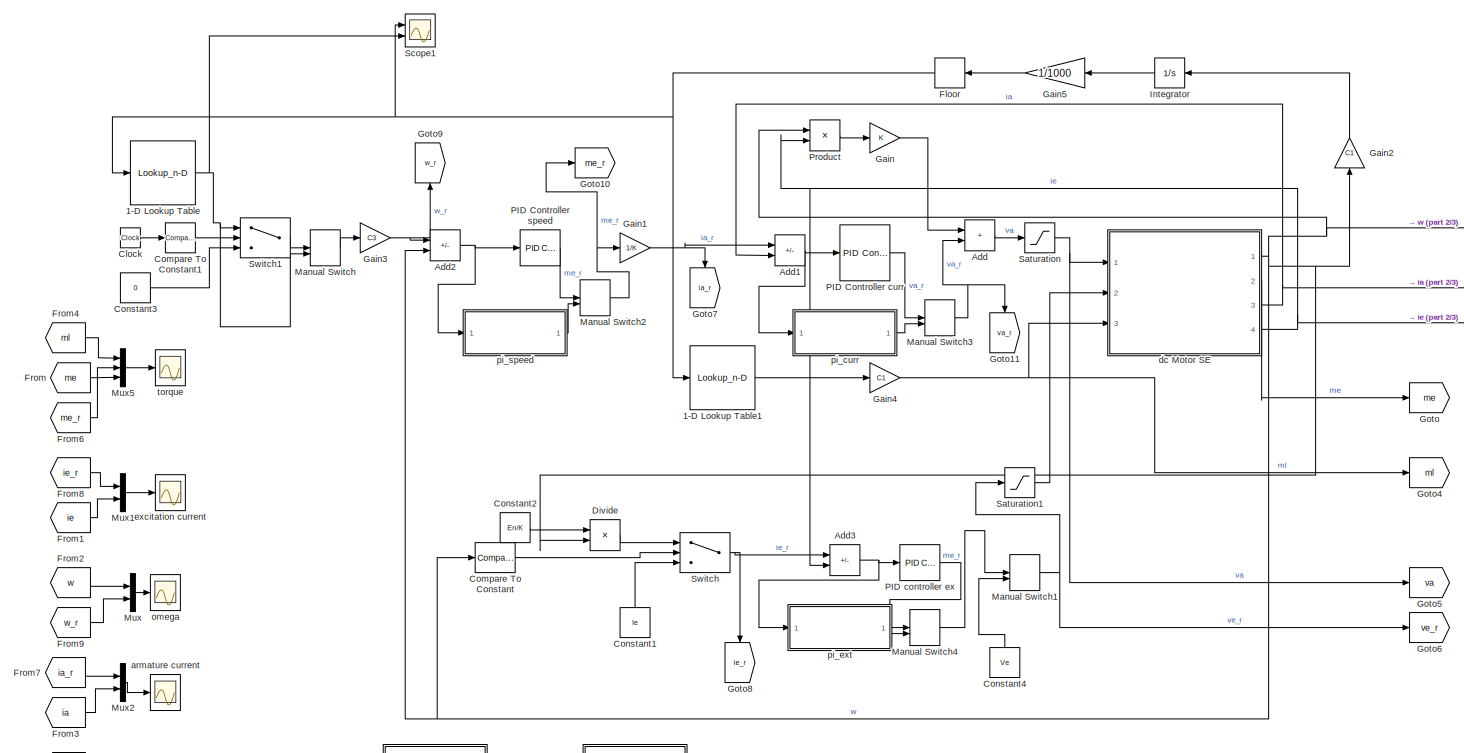
[diagram: root canvas - part 1/3, most of the canvas]
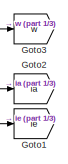
[diagram: root canvas - part 2/3, top right region]
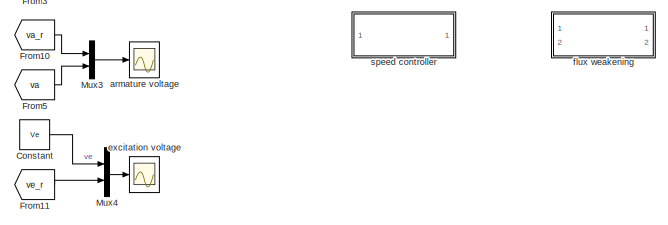
[diagram: root canvas - part 3/3, bottom left region]
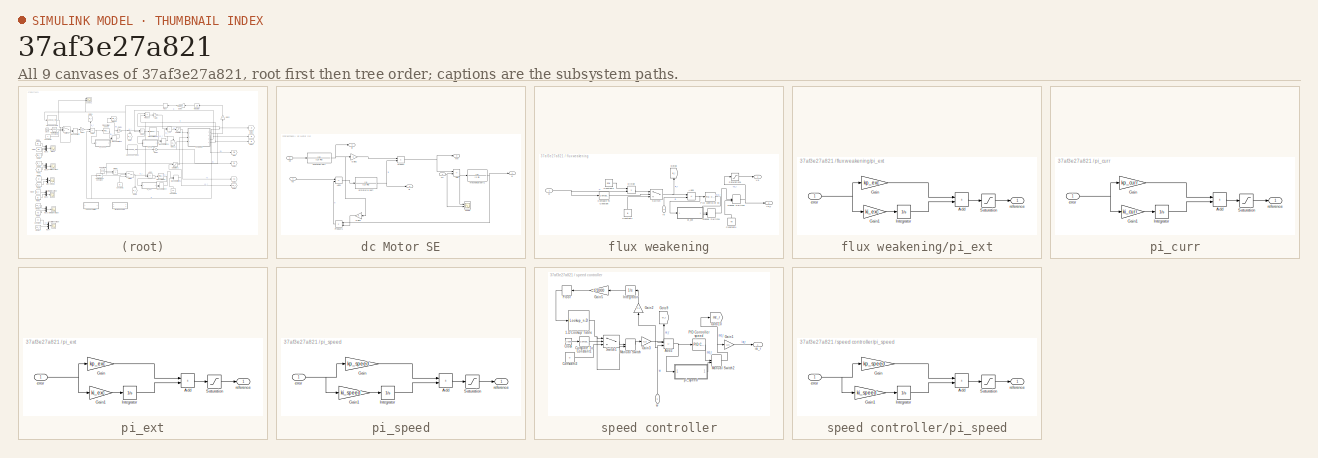
[diagram: thumbnail index - all 9 canvases of the model, root first then tree order]
MODEL slx_37af3e27a821
KIND model
CONFIG AbsTol = auto
CONFIG EnableMultiTasking = off
CONFIG FixedStep = auto
CONFIG MaxStep = auto
CONFIG MinStep = auto
CONFIG RelTol = 1e-3
CONFIG SampleTimeConstraint = Unconstrained
CONFIG SolverName = VariableStepAuto
CONFIG StartTime = 0.0
CONFIG StopTime = 800
BLOCK [Lookup_n-D] 1-D Lookup Table
  BreakpointsForDimension1 = [0 1 3 4 6 8 9 10]
  InputPortMap = u0
  InternalRulePriority = Speed
  InterpMethod = Flat
  NumberOfTableDimensions = 1
  Ports = [1, 1]
  RndMeth = Simplest
  Table = [35 60 60 75 60 60 35 0]
BLOCK [Lookup_n-D] 1-D Lookup Table1
  BreakpointsForDimension1 = [0 1 3 4 6 8 9 10]
  InputPortMap = u0
  InternalRulePriority = Speed
  InterpMethod = Flat
  NumberOfTableDimensions = 1
  Ports = [1, 1]
  RndMeth = Simplest
  Table = [0 0 26000*9.81*sin(atan(5/100)) 0 0 26000*9.81*sin(atan(-5/100)) 0 0]
BLOCK [Sum] Add
  IconShape = rectangular
  Ports = [2, 1]
BLOCK [Sum] Add1
  IconShape = rectangular
  Inputs = +-
  Ports = [2, 1]
BLOCK [Sum] Add2
  IconShape = rectangular
  Inputs = +-
  Ports = [2, 1]
BLOCK [Sum] Add3
  IconShape = rectangular
  Inputs = +-
  Ports = [2, 1]
BLOCK [Clock] Clock
BLOCK [Reference] Compare To Constant  REF=simulink/Logic and Bit
Operations/Compare
To Constant
  Ports = [1, 1]
  SourceBlock = simulink/Logic and Bit\nOperations/Compare\nTo Constant
  SourceProductBaseCode = SL
  SourceType = Compare To Constant
BLOCK [Reference] Compare To Constant1  REF=simulink/Logic and Bit
Operations/Compare
To Constant
  Ports = [1, 1]
  SourceBlock = simulink/Logic and Bit\nOperations/Compare\nTo Constant
  SourceProductBaseCode = SL
  SourceType = Compare To Constant
BLOCK [Constant] Constant
  Value = Ve
BLOCK [Constant] Constant1
  NameLocation = right
  Value = Ie
BLOCK [Constant] Constant2
  Value = En/K
BLOCK [Constant] Constant3
  Value = 0
BLOCK [Constant] Constant4
  NameLocation = right
  Value = Ve
BLOCK [Product] Divide
  Inputs = */
  Ports = [2, 1]
BLOCK [Rounding] Floor
  NameLocation = top
BLOCK [From] From
  GotoTag = me
BLOCK [From] From1
  GotoTag = ie
BLOCK [From] From10
  GotoTag = va_r
BLOCK [From] From11
  GotoTag = ve_r
BLOCK [From] From2
  GotoTag = w
BLOCK [From] From3
  GotoTag = ia
BLOCK [From] From4
  GotoTag = ml
BLOCK [From] From5
  GotoTag = va
BLOCK [From] From6
  GotoTag = me_r
BLOCK [From] From7
  GotoTag = ia_r
BLOCK [From] From8
  GotoTag = ie_r
BLOCK [From] From9
  GotoTag = w_r
BLOCK [Gain] Gain
  Gain = K
BLOCK [Gain] Gain1
  Gain = 1/K
BLOCK [Gain] Gain2
  Gain = C1
  NameLocation = right
BLOCK [Gain] Gain3
  Gain = C3
BLOCK [Gain] Gain4
  Gain = C1
BLOCK [Gain] Gain5
  Gain = 1/1000
  NameLocation = top
BLOCK [Goto] Goto
  GotoTag = me
BLOCK [Goto] Goto1
  GotoTag = ie
BLOCK [Goto] Goto10
  GotoTag = me_r
BLOCK [Goto] Goto11
  GotoTag = va_r
  NameLocation = left
BLOCK [Goto] Goto2
  GotoTag = ia
BLOCK [Goto] Goto3
  GotoTag = w
BLOCK [Goto] Goto4
  GotoTag = ml
BLOCK [Goto] Goto5
  GotoTag = va
BLOCK [Goto] Goto6
  GotoTag = ve_r
BLOCK [Goto] Goto7
  GotoTag = ia_r
  NameLocation = left
BLOCK [Goto] Goto8
  GotoTag = ie_r
  NameLocation = left
BLOCK [Goto] Goto9
  GotoTag = w_r
  NameLocation = right
BLOCK [Integrator] Integrator
  NameLocation = top
  Ports = [1, 1]
BLOCK [ManualSwitch] Manual Switch
BLOCK [ManualSwitch] Manual Switch1
BLOCK [ManualSwitch] Manual Switch2
BLOCK [ManualSwitch] Manual Switch3
BLOCK [ManualSwitch] Manual Switch4
BLOCK [Mux] Mux
  DisplayOption = bar
  Inputs = 2
  Ports = [2, 1]
BLOCK [Mux] Mux1
  DisplayOption = bar
  Inputs = 2
  Ports = [2, 1]
BLOCK [Mux] Mux2
  DisplayOption = bar
  Inputs = 2
  Ports = [2, 1]
BLOCK [Mux] Mux3
  DisplayOption = bar
  Inputs = 2
  Ports = [2, 1]
BLOCK [Mux] Mux4
  DisplayOption = bar
  Inputs = 2
  Ports = [2, 1]
BLOCK [Mux] Mux5
  DisplayOption = bar
  Inputs = 3
  Ports = [3, 1]
BLOCK [Reference] PID  controller ex  REF=pid_lib/PID Controller
  Ports = [1, 1]
  SourceBlock = pid_lib/PID Controller
  SourceProductBaseCode = SL
  SourceType = PID 1dof
BLOCK [Reference] PID Controller curr  REF=pid_lib/PID Controller
  Ports = [1, 1]
  SourceBlock = pid_lib/PID Controller
  SourceProductBaseCode = SL
  SourceType = PID 1dof
BLOCK [Reference] PID Controller speed  REF=pid_lib/PID Controller
  Ports = [1, 1]
  SourceBlock = pid_lib/PID Controller
  SourceProductBaseCode = SL
  SourceType = PID 1dof
BLOCK [Product] Product
  Ports = [2, 1]
BLOCK [Saturate] Saturation
  LowerLimit = -(v_n+v_n*0.5)
  UpperLimit = v_n+v_n*0.5
BLOCK [Saturate] Saturation1
  LowerLimit = -Ve-0.3*Ve
  UpperLimit = Ve+0.3*Ve
BLOCK [Scope] Scope1
  Floating = off
  NumInputPorts = 2
  Ports = [2]
  ScopeSpecificationString = Simulink.scopes.TimeScopeBlockCfg('CurrentConfiguration', extmgr.ConfigurationSet(extmgr.Configuration('Core','General UI',true),extmgr.Configuration('Core','Source UI',true),extmgr.Configuration('Sources','WiredSimulink',true,'DataLoggingVariableName','ScopeData2'),extmgr.Configuration('Visuals','Time Domain',true,'SerializedDisplays',{struct('MinYLimReal','-442.5','MaxYLimReal','132.5','YLabelRe...<+1400ch>
BLOCK [Switch] Switch
  Criteria = u2 > Threshold
  InputSameDT = off
  SaturateOnIntegerOverflow = off
BLOCK [Switch] Switch1
  Criteria = u2 > Threshold
  InputSameDT = off
  SaturateOnIntegerOverflow = off
BLOCK [Scope] armature current
  Floating = off
  NumInputPorts = 1
  Ports = [1]
  ScopeSpecificationString = Simulink.scopes.TimeScopeBlockCfg('CurrentConfiguration', extmgr.ConfigurationSet(extmgr.Configuration('Core','General UI',true),extmgr.Configuration('Core','Source UI',true),extmgr.Configuration('Sources','WiredSimulink',true,'DataLoggingVariableName','ScopeData4'),extmgr.Configuration('Visuals','Time Domain',true,'SerializedDisplays',{struct('MinYLimReal','-1342.50043','MaxYLimReal','1342.50049'...<+1540ch>
BLOCK [Scope] armature voltage
  Floating = off
  NumInputPorts = 1
  Ports = [1]
  ScopeSpecificationString = Simulink.scopes.TimeScopeBlockCfg('CurrentConfiguration', extmgr.ConfigurationSet(extmgr.Configuration('Core','General UI',true),extmgr.Configuration('Core','Source UI',true),extmgr.Configuration('Sources','WiredSimulink',true,'DataLoggingVariableName','ScopeData5'),extmgr.Configuration('Visuals','Time Domain',true,'SerializedDisplays',{struct('MinYLimReal','-324.99976','MaxYLimReal','876.61381','...<+1559ch>
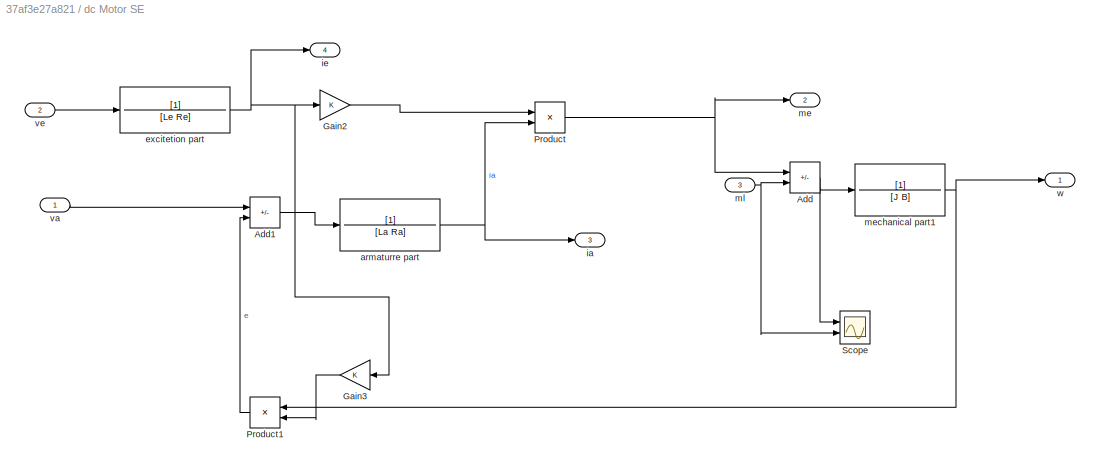
BLOCK [SubSystem] dc Motor SE
  Ports = [3, 4]
  RequestExecContextInheritance = off
BLOCK [Sum] dc Motor SE/Add
  IconShape = rectangular
  Inputs = +-
  Ports = [2, 1]
BLOCK [Sum] dc Motor SE/Add1
  IconShape = rectangular
  Inputs = +-
  Ports = [2, 1]
BLOCK [Gain] dc Motor SE/Gain2
  Gain = K
BLOCK [Gain] dc Motor SE/Gain3
  Gain = K
  NameLocation = top
BLOCK [Product] dc Motor SE/Product
  Ports = [2, 1]
BLOCK [Product] dc Motor SE/Product1
  NameLocation = top
  Ports = [2, 1]
BLOCK [Scope] dc Motor SE/Scope
  Floating = off
  NumInputPorts = 2
  Ports = [2]
  ScopeSpecificationString = Simulink.scopes.TimeScopeBlockCfg('CurrentConfiguration', extmgr.ConfigurationSet(extmgr.Configuration('Core','General UI',true),extmgr.Configuration('Core','Source UI',true),extmgr.Configuration('Sources','WiredSimulink',true,'DataLoggingVariableName','ScopeData1'),extmgr.Configuration('Visuals','Time Domain',true,'SerializedDisplays',{struct('MinYLimReal','-33335.63703','MaxYLimReal','43154.8233...<+1421ch>
BLOCK [TransferFcn] dc Motor SE/armaturre part
  Denominator = [La Ra]
BLOCK [TransferFcn] dc Motor SE/excitetion part
  Denominator = [Le Re]
BLOCK [Outport] dc Motor SE/ia
  Port = 3
BLOCK [Outport] dc Motor SE/ie
  Port = 4
BLOCK [Outport] dc Motor SE/me
  Port = 2
BLOCK [TransferFcn] dc Motor SE/mechanical part1
  Denominator = [J B]
BLOCK [Inport] dc Motor SE/ml
  Port = 3
BLOCK [Inport] dc Motor SE/va
BLOCK [Inport] dc Motor SE/ve
  Port = 2
BLOCK [Outport] dc Motor SE/w
BLOCK [Scope] excitation current
  Floating = off
  NumInputPorts = 1
  Ports = [1]
  ScopeSpecificationString = Simulink.scopes.TimeScopeBlockCfg('CurrentConfiguration', extmgr.ConfigurationSet(extmgr.Configuration('Core','General UI',true),extmgr.Configuration('Core','Source UI',true),extmgr.Configuration('Sources','WiredSimulink',true,'DataLoggingVariableName','ScopeData1'),extmgr.Configuration('Visuals','Time Domain',true,'SerializedDisplays',{struct('MinYLimReal','-0.125','MaxYLimReal','1.125','YLabelRe...<+2248ch>
BLOCK [Scope] excitation voltage
  Floating = off
  NumInputPorts = 1
  Ports = [1]
  ScopeSpecificationString = Simulink.scopes.TimeScopeBlockCfg('CurrentConfiguration', extmgr.ConfigurationSet(extmgr.Configuration('Core','General UI',true),extmgr.Configuration('Core','Source UI',true),extmgr.Configuration('Sources','WiredSimulink',true,'DataLoggingVariableName','ScopeData6'),extmgr.Configuration('Visuals','Time Domain',true,'SerializedDisplays',{struct('MinYLimReal','20.00000','MaxYLimReal','220.00000','YL...<+1527ch>
BLOCK [SubSystem] flux weakening
  Ports = [2, 2]
  RequestExecContextInheritance = off
BLOCK [Sum] flux weakening/Add3
  IconShape = rectangular
  Inputs = +-
  Ports = [2, 1]
BLOCK [Reference] flux weakening/Compare To Constant  REF=simulink/Logic and Bit
Operations/Compare
To Constant
  Ports = [1, 1]
  SourceBlock = simulink/Logic and Bit\nOperations/Compare\nTo Constant
  SourceProductBaseCode = SL
  SourceType = Compare To Constant
BLOCK [Constant] flux weakening/Constant1
  NameLocation = right
  Value = Ie
BLOCK [Constant] flux weakening/Constant2
  Value = En/K
BLOCK [Constant] flux weakening/Constant4
  NameLocation = right
  Value = Ve
BLOCK [Product] flux weakening/Divide
  Inputs = */
  Ports = [2, 1]
BLOCK [Goto] flux weakening/Goto8
  GotoTag = ie_r
  NameLocation = right
  TagVisibility = global
BLOCK [ManualSwitch] flux weakening/Manual Switch1
BLOCK [ManualSwitch] flux weakening/Manual Switch4
BLOCK [Reference] flux weakening/PID  controller ex  REF=pid_lib/PID Controller
  Ports = [1, 1]
  SourceBlock = pid_lib/PID Controller
  SourceProductBaseCode = SL
  SourceType = PID 1dof
BLOCK [Saturate] flux weakening/Saturation1
  LowerLimit = -Ve-0.3*Ve
  UpperLimit = Ve+0.3*Ve
BLOCK [Switch] flux weakening/Switch
  Criteria = u2 > Threshold
  InputSameDT = off
  SaturateOnIntegerOverflow = off
BLOCK [Outport] flux weakening/Ve
BLOCK [Outport] flux weakening/Ve_r
  Port = 2
BLOCK [Inport] flux weakening/ie
  NameLocation = right
  Port = 2
BLOCK [SubSystem] flux weakening/pi_ext
  Ports = [1, 1]
  RequestExecContextInheritance = off
BLOCK [Sum] flux weakening/pi_ext/Add
  IconShape = rectangular
  Ports = [2, 1]
BLOCK [Gain] flux weakening/pi_ext/Gain
  Gain = kp_exc
BLOCK [Gain] flux weakening/pi_ext/Gain1
  Gain = ki_exc
BLOCK [Integrator] flux weakening/pi_ext/Integrator
  Ports = [1, 1]
BLOCK [Saturate] flux weakening/pi_ext/Saturation
  LowerLimit = -(Ve+Ve*0.3)
  UpperLimit = Ve+Ve*0.3
BLOCK [Inport] flux weakening/pi_ext/error
BLOCK [Outport] flux weakening/pi_ext/reference
BLOCK [Inport] flux weakening/w
BLOCK [Scope] omega
  Floating = off
  NumInputPorts = 1
  Ports = [1]
  ScopeSpecificationString = Simulink.scopes.TimeScopeBlockCfg('CurrentConfiguration', extmgr.ConfigurationSet(extmgr.Configuration('Core','General UI',true),extmgr.Configuration('Core','Source UI',true),extmgr.Configuration('Sources','WiredSimulink',true,'DataLoggingVariableName','ScopeData3'),extmgr.Configuration('Visuals','Time Domain',true,'SerializedDisplays',{struct('MinYLimReal','-60.92439','MaxYLimReal','448.7832','YL...<+2246ch>
BLOCK [SubSystem] pi_curr
  Ports = [1, 1]
  RequestExecContextInheritance = off
BLOCK [Sum] pi_curr/Add
  IconShape = rectangular
  Ports = [2, 1]
BLOCK [Gain] pi_curr/Gain
  Gain = kp_curr
BLOCK [Gain] pi_curr/Gain1
  Gain = ki_curr
BLOCK [Integrator] pi_curr/Integrator
  Ports = [1, 1]
BLOCK [Saturate] pi_curr/Saturation
  LowerLimit = -(v_n+v_n*0.5)
  UpperLimit = v_n+v_n*0.5
BLOCK [Inport] pi_curr/error
BLOCK [Outport] pi_curr/reference
BLOCK [SubSystem] pi_ext
  Ports = [1, 1]
  RequestExecContextInheritance = off
BLOCK [Sum] pi_ext/Add
  IconShape = rectangular
  Ports = [2, 1]
BLOCK [Gain] pi_ext/Gain
  Gain = kp_exc
BLOCK [Gain] pi_ext/Gain1
  Gain = ki_exc
BLOCK [Integrator] pi_ext/Integrator
  Ports = [1, 1]
BLOCK [Saturate] pi_ext/Saturation
  LowerLimit = -(Ve+Ve*0.3)
  UpperLimit = Ve+Ve*0.3
BLOCK [Inport] pi_ext/error
BLOCK [Outport] pi_ext/reference
BLOCK [SubSystem] pi_speed
  Ports = [1, 1]
  RequestExecContextInheritance = off
BLOCK [Sum] pi_speed/Add
  IconShape = rectangular
  Ports = [2, 1]
BLOCK [Gain] pi_speed/Gain
  Gain = kp_speed
BLOCK [Gain] pi_speed/Gain1
  Gain = ki_speed
BLOCK [Integrator] pi_speed/Integrator
  LowerSaturationLimit = -Antiwindup
  Ports = [1, 1]
  UpperSaturationLimit = Antiwindup
BLOCK [Saturate] pi_speed/Saturation
  LowerLimit = -(1.5*T_n)
  UpperLimit = 1.5*T_n
BLOCK [Inport] pi_speed/error
BLOCK [Outport] pi_speed/reference
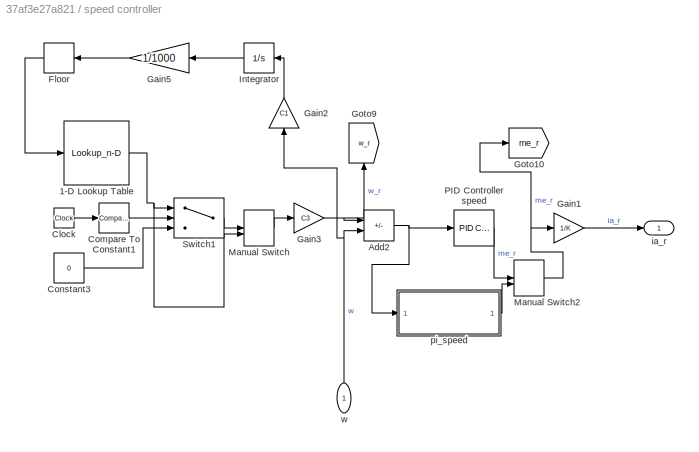
BLOCK [SubSystem] speed controller
  Ports = [1, 1]
  RequestExecContextInheritance = off
BLOCK [Lookup_n-D] speed controller/1-D Lookup Table
  BreakpointsForDimension1 = [0 1 3 4 6 8 9 10]
  InputPortMap = u0
  InternalRulePriority = Speed
  InterpMethod = Flat
  NumberOfTableDimensions = 1
  Ports = [1, 1]
  RndMeth = Simplest
  Table = [35 60 60 75 60 60 35 0]
BLOCK [Sum] speed controller/Add2
  IconShape = rectangular
  Inputs = +-
  Ports = [2, 1]
BLOCK [Clock] speed controller/Clock
BLOCK [Reference] speed controller/Compare To Constant1  REF=simulink/Logic and Bit
Operations/Compare
To Constant
  Ports = [1, 1]
  SourceBlock = simulink/Logic and Bit\nOperations/Compare\nTo Constant
  SourceProductBaseCode = SL
  SourceType = Compare To Constant
BLOCK [Constant] speed controller/Constant3
  Value = 0
BLOCK [Rounding] speed controller/Floor
  NameLocation = top
BLOCK [Gain] speed controller/Gain1
  Gain = 1/K
BLOCK [Gain] speed controller/Gain2
  Gain = C1
  NameLocation = right
BLOCK [Gain] speed controller/Gain3
  Gain = C3
BLOCK [Gain] speed controller/Gain5
  Gain = 1/1000
  NameLocation = top
BLOCK [Goto] speed controller/Goto10
  GotoTag = me_r
  TagVisibility = global
BLOCK [Goto] speed controller/Goto9
  GotoTag = w_r
  NameLocation = right
  TagVisibility = global
BLOCK [Integrator] speed controller/Integrator
  NameLocation = top
  Ports = [1, 1]
BLOCK [ManualSwitch] speed controller/Manual Switch
BLOCK [ManualSwitch] speed controller/Manual Switch2
BLOCK [Reference] speed controller/PID Controller speed  REF=pid_lib/PID Controller
  Ports = [1, 1]
  SourceBlock = pid_lib/PID Controller
  SourceProductBaseCode = SL
  SourceType = PID 1dof
BLOCK [Switch] speed controller/Switch1
  Criteria = u2 > Threshold
  InputSameDT = off
  SaturateOnIntegerOverflow = off
BLOCK [Outport] speed controller/ia_r
BLOCK [SubSystem] speed controller/pi_speed
  Ports = [1, 1]
  RequestExecContextInheritance = off
BLOCK [Sum] speed controller/pi_speed/Add
  IconShape = rectangular
  Ports = [2, 1]
BLOCK [Gain] speed controller/pi_speed/Gain
  Gain = kp_speed
BLOCK [Gain] speed controller/pi_speed/Gain1
  Gain = ki_speed
BLOCK [Integrator] speed controller/pi_speed/Integrator
  LowerSaturationLimit = -Antiwindup
  Ports = [1, 1]
  UpperSaturationLimit = Antiwindup
BLOCK [Saturate] speed controller/pi_speed/Saturation
  LowerLimit = -(1.5*T_n)
  UpperLimit = 1.5*T_n
BLOCK [Inport] speed controller/pi_speed/error
BLOCK [Outport] speed controller/pi_speed/reference
BLOCK [Inport] speed controller/w
  NameLocation = right
BLOCK [Scope] torque
  Floating = off
  NumInputPorts = 1
  Ports = [1]
  ScopeSpecificationString = Simulink.scopes.TimeScopeBlockCfg('CurrentConfiguration', extmgr.ConfigurationSet(extmgr.Configuration('Core','General UI',true),extmgr.Configuration('Core','Source UI',true),extmgr.Configuration('Sources','WiredSimulink',true,'DataLoggingVariableName','ScopeData2'),extmgr.Configuration('Visuals','Time Domain',true,'SerializedDisplays',{struct('MinYLimReal','-2300.07142','MaxYLimReal','2300.07086'...<+1547ch>
LINE 1-D Lookup Table1:1 -> Gain4:1
NET 1-D Lookup Table:1 -> Manual Switch:2, Scope1:2, Switch1:1
NET Add1:1 -> PID Controller curr:1, pi_curr:1
NET Add2:1 -> PID Controller speed:1, pi_speed:1
NET Add3:1 -> PID  controller ex:1, pi_ext:1
LINE Add:1 -> Saturation:1
LINE Clock:1 -> Compare To Constant1:1
LINE Compare To Constant1:1 -> Switch1:2
LINE Compare To Constant:1 -> Switch:2
LINE Constant1:1 -> Switch:3
LINE Constant2:1 -> Divide:1
LINE Constant3:1 -> Switch1:3
LINE Constant4:1 -> Manual Switch1:2
LINE Constant:1 -> Mux4:1
LINE Divide:1 -> Switch:1
NET Floor:1 -> 1-D Lookup Table1:1, 1-D Lookup Table:1, Scope1:1
LINE From10:1 -> Mux3:1
LINE From11:1 -> Mux4:2
LINE From1:1 -> Mux1:2
LINE From2:1 -> Mux:1
LINE From3:1 -> Mux2:2
LINE From4:1 -> Mux5:1
LINE From5:1 -> Mux3:2
LINE From6:1 -> Mux5:2
LINE From7:1 -> Mux2:1
LINE From8:1 -> Mux1:1
LINE From9:1 -> Mux:2
LINE From:1 -> Mux5:3
NET Gain1:1 -> Add1:1, Goto7:1
LINE Gain2:1 -> Integrator:1
NET Gain3:1 -> Add2:1, Goto9:1
NET Gain4:1 -> Goto4:1, dc Motor SE:3
LINE Gain5:1 -> Floor:1
LINE Gain:1 -> Add:1
LINE Integrator:1 -> Gain5:1
NET Manual Switch1:1 -> Goto6:1, Saturation1:1
NET Manual Switch2:1 -> Gain1:1, Goto10:1
NET Manual Switch3:1 -> Add:2, Goto11:1
LINE Manual Switch4:1 -> Manual Switch1:1
LINE Manual Switch:1 -> Gain3:1
LINE Mux1:1 -> excitation current:1
LINE Mux2:1 -> armature current:1
LINE Mux3:1 -> armature voltage:1
LINE Mux4:1 -> excitation voltage:1
LINE Mux5:1 -> torque:1
LINE Mux:1 -> omega:1
LINE PID  controller ex:1 -> Manual Switch4:1
LINE PID Controller curr:1 -> Manual Switch3:1
LINE PID Controller speed:1 -> Manual Switch2:1
LINE Product:1 -> Gain:1
LINE Saturation1:1 -> dc Motor SE:2
NET Saturation:1 -> Goto5:1, dc Motor SE:1
LINE Switch1:1 -> Manual Switch:1
NET Switch:1 -> Add3:1, Goto8:1
LINE dc Motor SE/Add1:1 -> dc Motor SE/armaturre part:1
NET dc Motor SE/Add:1 -> dc Motor SE/Scope:1, dc Motor SE/mechanical part1:1
LINE dc Motor SE/Gain2:1 -> dc Motor SE/Product:1
LINE dc Motor SE/Gain3:1 -> dc Motor SE/Product1:2
LINE dc Motor SE/Product1:1 -> dc Motor SE/Add1:2
NET dc Motor SE/Product:1 -> dc Motor SE/Add:1, dc Motor SE/me:1
NET dc Motor SE/armaturre part:1 -> dc Motor SE/Product:2, dc Motor SE/ia:1
NET dc Motor SE/excitetion part:1 -> dc Motor SE/Gain2:1, dc Motor SE/Gain3:1, dc Motor SE/ie:1
NET dc Motor SE/mechanical part1:1 -> dc Motor SE/Product1:1, dc Motor SE/w:1
NET dc Motor SE/ml:1 -> dc Motor SE/Add:2, dc Motor SE/Scope:2
LINE dc Motor SE/va:1 -> dc Motor SE/Add1:1
LINE dc Motor SE/ve:1 -> dc Motor SE/excitetion part:1
NET dc Motor SE:1 -> Add2:2, Compare To Constant:1, Divide:2, Gain2:1, Goto3:1, Product:1
LINE dc Motor SE:2 -> Goto:1
NET dc Motor SE:3 -> Add1:2, Goto2:1
NET dc Motor SE:4 -> Add3:2, Goto1:1, Product:2
NET flux weakening/Add3:1 -> flux weakening/PID  controller ex:1, flux weakening/pi_ext:1
LINE flux weakening/Compare To Constant:1 -> flux weakening/Switch:2
LINE flux weakening/Constant1:1 -> flux weakening/Switch:3
LINE flux weakening/Constant2:1 -> flux weakening/Divide:1
LINE flux weakening/Constant4:1 -> flux weakening/Manual Switch1:2
LINE flux weakening/Divide:1 -> flux weakening/Switch:1
NET flux weakening/Manual Switch1:1 -> flux weakening/Saturation1:1, flux weakening/Ve_r:1
LINE flux weakening/Manual Switch4:1 -> flux weakening/Manual Switch1:1
LINE flux weakening/PID  controller ex:1 -> flux weakening/Manual Switch4:1
LINE flux weakening/Saturation1:1 -> flux weakening/Ve:1
NET flux weakening/Switch:1 -> flux weakening/Add3:1, flux weakening/Goto8:1
LINE flux weakening/ie:1 -> flux weakening/Add3:2
LINE flux weakening/pi_ext/Add:1 -> flux weakening/pi_ext/Saturation:1
LINE flux weakening/pi_ext/Gain1:1 -> flux weakening/pi_ext/Integrator:1
LINE flux weakening/pi_ext/Gain:1 -> flux weakening/pi_ext/Add:1
LINE flux weakening/pi_ext/Integrator:1 -> flux weakening/pi_ext/Add:2
LINE flux weakening/pi_ext/Saturation:1 -> flux weakening/pi_ext/reference:1
NET flux weakening/pi_ext/error:1 -> flux weakening/pi_ext/Gain1:1, flux weakening/pi_ext/Gain:1
LINE flux weakening/pi_ext:1 -> flux weakening/Manual Switch4:2
NET flux weakening/w:1 -> flux weakening/Compare To Constant:1, flux weakening/Divide:2
LINE pi_curr/Add:1 -> pi_curr/Saturation:1
LINE pi_curr/Gain1:1 -> pi_curr/Integrator:1
LINE pi_curr/Gain:1 -> pi_curr/Add:1
LINE pi_curr/Integrator:1 -> pi_curr/Add:2
LINE pi_curr/Saturation:1 -> pi_curr/reference:1
NET pi_curr/error:1 -> pi_curr/Gain1:1, pi_curr/Gain:1
LINE pi_curr:1 -> Manual Switch3:2
LINE pi_ext/Add:1 -> pi_ext/Saturation:1
LINE pi_ext/Gain1:1 -> pi_ext/Integrator:1
LINE pi_ext/Gain:1 -> pi_ext/Add:1
LINE pi_ext/Integrator:1 -> pi_ext/Add:2
LINE pi_ext/Saturation:1 -> pi_ext/reference:1
NET pi_ext/error:1 -> pi_ext/Gain1:1, pi_ext/Gain:1
LINE pi_ext:1 -> Manual Switch4:2
LINE pi_speed/Add:1 -> pi_speed/Saturation:1
LINE pi_speed/Gain1:1 -> pi_speed/Integrator:1
LINE pi_speed/Gain:1 -> pi_speed/Add:1
LINE pi_speed/Integrator:1 -> pi_speed/Add:2
LINE pi_speed/Saturation:1 -> pi_speed/reference:1
NET pi_speed/error:1 -> pi_speed/Gain1:1, pi_speed/Gain:1
LINE pi_speed:1 -> Manual Switch2:2
NET speed controller/1-D Lookup Table:1 -> speed controller/Manual Switch:2, speed controller/Switch1:1
NET speed controller/Add2:1 -> speed controller/PID Controller speed:1, speed controller/pi_speed:1
LINE speed controller/Clock:1 -> speed controller/Compare To Constant1:1
LINE speed controller/Compare To Constant1:1 -> speed controller/Switch1:2
LINE speed controller/Constant3:1 -> speed controller/Switch1:3
LINE speed controller/Floor:1 -> speed controller/1-D Lookup Table:1
LINE speed controller/Gain1:1 -> speed controller/ia_r:1
LINE speed controller/Gain2:1 -> speed controller/Integrator:1
NET speed controller/Gain3:1 -> speed controller/Add2:1, speed controller/Goto9:1
LINE speed controller/Gain5:1 -> speed controller/Floor:1
LINE speed controller/Integrator:1 -> speed controller/Gain5:1
NET speed controller/Manual Switch2:1 -> speed controller/Gain1:1, speed controller/Goto10:1
LINE speed controller/Manual Switch:1 -> speed controller/Gain3:1
LINE speed controller/PID Controller speed:1 -> speed controller/Manual Switch2:1
LINE speed controller/Switch1:1 -> speed controller/Manual Switch:1
LINE speed controller/pi_speed/Add:1 -> speed controller/pi_speed/Saturation:1
LINE speed controller/pi_speed/Gain1:1 -> speed controller/pi_speed/Integrator:1
LINE speed controller/pi_speed/Gain:1 -> speed controller/pi_speed/Add:1
LINE speed controller/pi_speed/Integrator:1 -> speed controller/pi_speed/Add:2
LINE speed controller/pi_speed/Saturation:1 -> speed controller/pi_speed/reference:1
NET speed controller/pi_speed/error:1 -> speed controller/pi_speed/Gain1:1, speed controller/pi_speed/Gain:1
LINE speed controller/pi_speed:1 -> speed controller/Manual Switch2:2
NET speed controller/w:1 -> speed controller/Add2:2, speed controller/Gain2:1
note: NET lines group one-source signal fan-out (src -> all destinations, sorted); 1:1 wires keep LINE
